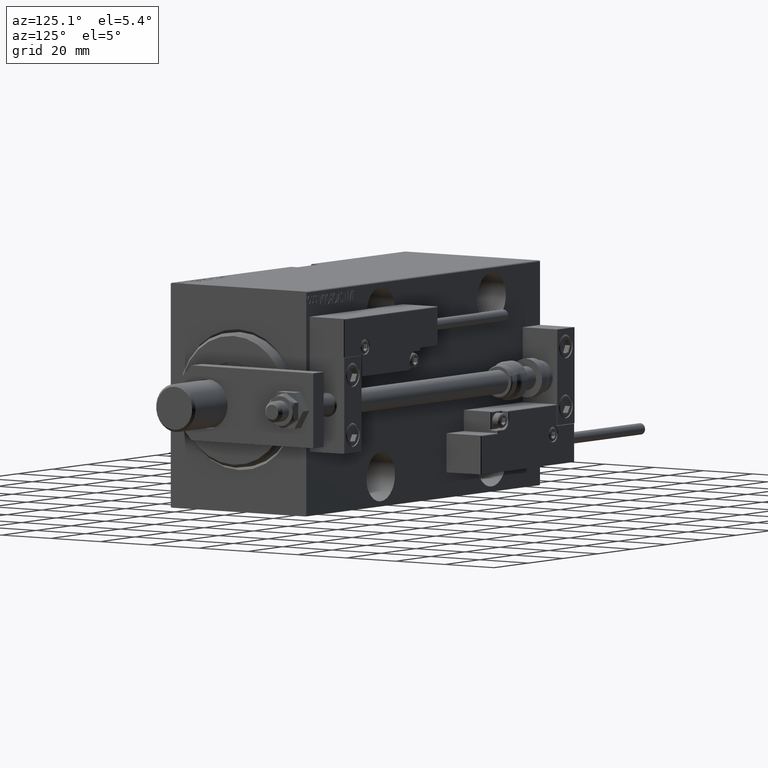
[diagram: clean part render]
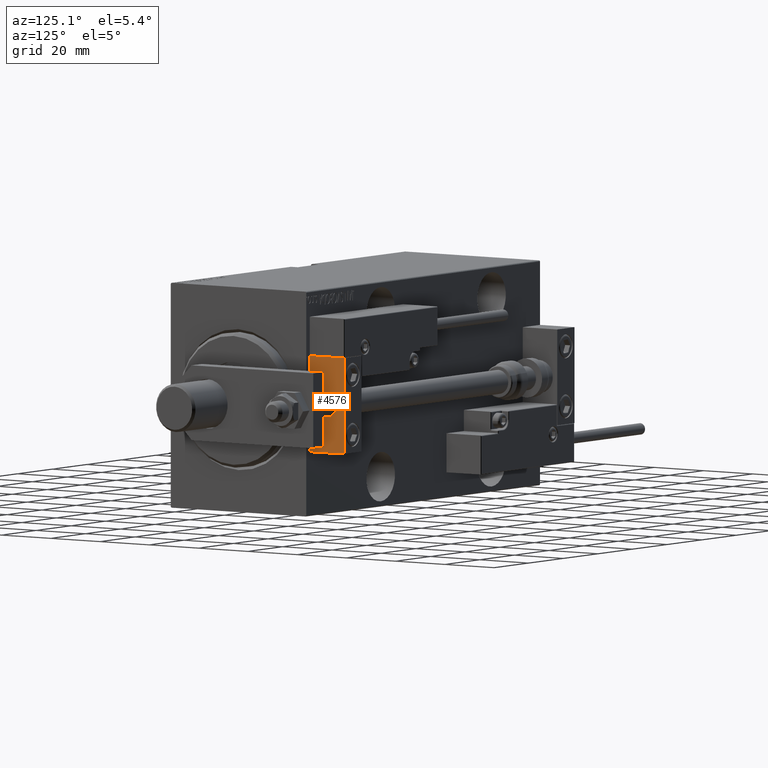
[diagram: same view with one face highlighted and labeled with its STEP entity id]
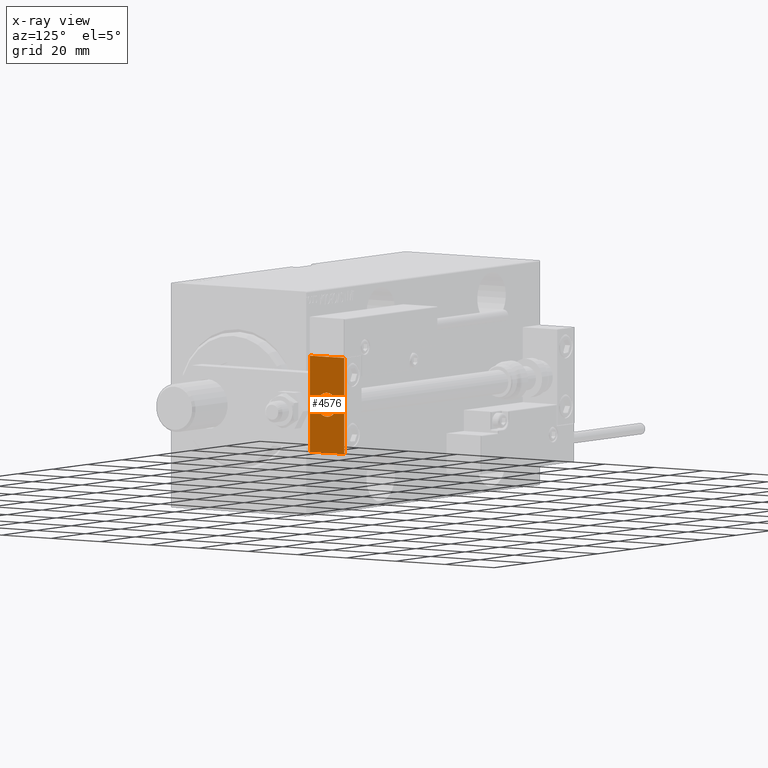
[diagram: x-ray of the same camera — body ghosted, the highlighted face saturated]
A machine part, auxiliary view. The second image highlights one B-rep face of the part: STEP entity #4576.
The next image is the same camera in x-ray: the body ghosted, the highlighted face saturated — about 0% of this face is hidden behind the body in this view.
In plain terms, the highlighted planar face has unit normal (-1, 0, 0).
Its self-contained STEP definition (entity closure, byte-faithful):
#2350 = DIRECTION ( 'NONE',  ( 0.000000000000000000, -1.000000000000000000, 0.000000000000000000 ) ) ;
#2359 = AXIS2_PLACEMENT_3D ( 'NONE', #17652, #37696, #28850 ) ;
#3150 = CIRCLE ( 'NONE', #2359, 4.000000000000000000 ) ;
#3577 = ORIENTED_EDGE ( 'NONE', *, *, #34040, .F. ) ;
#4336 = VERTEX_POINT ( 'NONE', #38715 ) ;
#4576 = ADVANCED_FACE ( 'NONE', ( #37157, #18109 ), #41217, .F. ) ;
#4999 = CARTESIAN_POINT ( 'NONE',  ( 10.00000000000000000, 0.000000000000000000, 4.000000000000000000 ) ) ;
#5267 = DIRECTION ( 'NONE',  ( 0.000000000000000000, -1.000000000000000000, 0.000000000000000000 ) ) ;
#5825 = EDGE_CURVE ( 'NONE', #17817, #42301, #3150, .T. ) ;
#6250 = CIRCLE ( 'NONE', #29000, 4.000000000000000000 ) ;
#7415 = VERTEX_POINT ( 'NONE', #8938 ) ;
#8938 = CARTESIAN_POINT ( 'NONE',  ( 10.00000000000000000, -7.000000000000000000, 15.99999999999999289 ) ) ;
#10192 = EDGE_LOOP ( 'NONE', ( #32581, #35763 ) ) ;
#12376 = LINE ( 'NONE', #36000, #39871 ) ;
#14790 = CARTESIAN_POINT ( 'NONE',  ( 10.00000000000000000, 0.000000000000000000, 0.000000000000000000 ) ) ;
#17652 = CARTESIAN_POINT ( 'NONE',  ( 10.00000000000000000, 0.000000000000000000, 0.000000000000000000 ) ) ;
#17817 = VERTEX_POINT ( 'NONE', #45313 ) ;
#18093 = LINE ( 'NONE', #40275, #48523 ) ;
#18109 = FACE_OUTER_BOUND ( 'NONE', #25038, .T. ) ;
#20461 = DIRECTION ( 'NONE',  ( 0.000000000000000000, 0.000000000000000000, -1.000000000000000000 ) ) ;
#20510 = CARTESIAN_POINT ( 'NONE',  ( 10.00000000000000000, 0.000000000000000000, 0.000000000000000000 ) ) ;
#20765 = VERTEX_POINT ( 'NONE', #42292 ) ;
#21776 = ORIENTED_EDGE ( 'NONE', *, *, #48063, .T. ) ;
#24447 = AXIS2_PLACEMENT_3D ( 'NONE', #14790, #33609, #49079 ) ;
#25038 = EDGE_LOOP ( 'NONE', ( #40685, #29725, #3577, #21776 ) ) ;
#25478 = LINE ( 'NONE', #37142, #33773 ) ;
#26495 = VECTOR ( 'NONE', #20461, 1000.000000000000000 ) ;
#27151 = LINE ( 'NONE', #42625, #26495 ) ;
#28535 = CARTESIAN_POINT ( 'NONE',  ( 10.00000000000000000, 7.000000000000000000, -16.00000000000000711 ) ) ;
#28850 = DIRECTION ( 'NONE',  ( 0.000000000000000000, 0.000000000000000000, 1.000000000000000000 ) ) ;
#29000 = AXIS2_PLACEMENT_3D ( 'NONE', #20510, #44124, #32446 ) ;
#29725 = ORIENTED_EDGE ( 'NONE', *, *, #30529, .F. ) ;
#30529 = EDGE_CURVE ( 'NONE', #37007, #4336, #25478, .T. ) ;
#32118 = EDGE_CURVE ( 'NONE', #42301, #17817, #6250, .T. ) ;
#32446 = DIRECTION ( 'NONE',  ( 0.000000000000000000, 0.000000000000000000, 1.000000000000000000 ) ) ;
#32581 = ORIENTED_EDGE ( 'NONE', *, *, #32118, .T. ) ;
#33609 = DIRECTION ( 'NONE',  ( -1.000000000000000000, 0.000000000000000000, -0.000000000000000000 ) ) ;
#33773 = VECTOR ( 'NONE', #2350, 1000.000000000000000 ) ;
#34040 = EDGE_CURVE ( 'NONE', #20765, #37007, #27151, .T. ) ;
#35763 = ORIENTED_EDGE ( 'NONE', *, *, #5825, .T. ) ;
#36000 = CARTESIAN_POINT ( 'NONE',  ( 10.00000000000000000, 7.000000000000000000, 15.99999999999999289 ) ) ;
#37007 = VERTEX_POINT ( 'NONE', #28535 ) ;
#37142 = CARTESIAN_POINT ( 'NONE',  ( 10.00000000000000000, 7.000000000000000000, -16.00000000000000711 ) ) ;
#37157 = FACE_BOUND ( 'NONE', #10192, .T. ) ;
#37642 = DIRECTION ( 'NONE',  ( 0.000000000000000000, 0.000000000000000000, -1.000000000000000000 ) ) ;
#37696 = DIRECTION ( 'NONE',  ( -1.000000000000000000, 0.000000000000000000, 0.000000000000000000 ) ) ;
#38715 = CARTESIAN_POINT ( 'NONE',  ( 10.00000000000000000, -7.000000000000000000, -16.00000000000000711 ) ) ;
#39871 = VECTOR ( 'NONE', #5267, 1000.000000000000000 ) ;
#40275 = CARTESIAN_POINT ( 'NONE',  ( 10.00000000000000000, -7.000000000000000000, 15.99999999999999289 ) ) ;
#40685 = ORIENTED_EDGE ( 'NONE', *, *, #41370, .T. ) ;
#41217 = PLANE ( 'NONE',  #24447 ) ;
#41370 = EDGE_CURVE ( 'NONE', #7415, #4336, #18093, .T. ) ;
#42292 = CARTESIAN_POINT ( 'NONE',  ( 10.00000000000000000, 7.000000000000000000, 15.99999999999999289 ) ) ;
#42301 = VERTEX_POINT ( 'NONE', #4999 ) ;
#42625 = CARTESIAN_POINT ( 'NONE',  ( 10.00000000000000000, 7.000000000000000000, 15.99999999999999289 ) ) ;
#44124 = DIRECTION ( 'NONE',  ( -1.000000000000000000, 0.000000000000000000, 0.000000000000000000 ) ) ;
#45313 = CARTESIAN_POINT ( 'NONE',  ( 10.00000000000000000, 4.898587196589412829E-16, -4.000000000000000000 ) ) ;
#48063 = EDGE_CURVE ( 'NONE', #20765, #7415, #12376, .T. ) ;
#48523 = VECTOR ( 'NONE', #37642, 1000.000000000000000 ) ;
#49079 = DIRECTION ( 'NONE',  ( -0.000000000000000000, 0.000000000000000000, 1.000000000000000000 ) ) ;